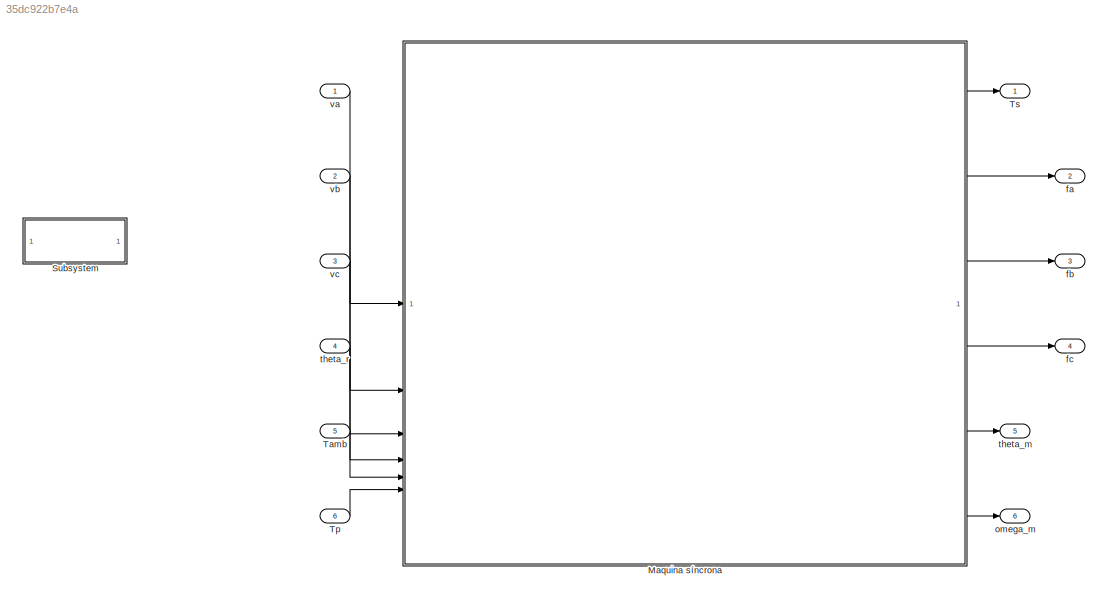
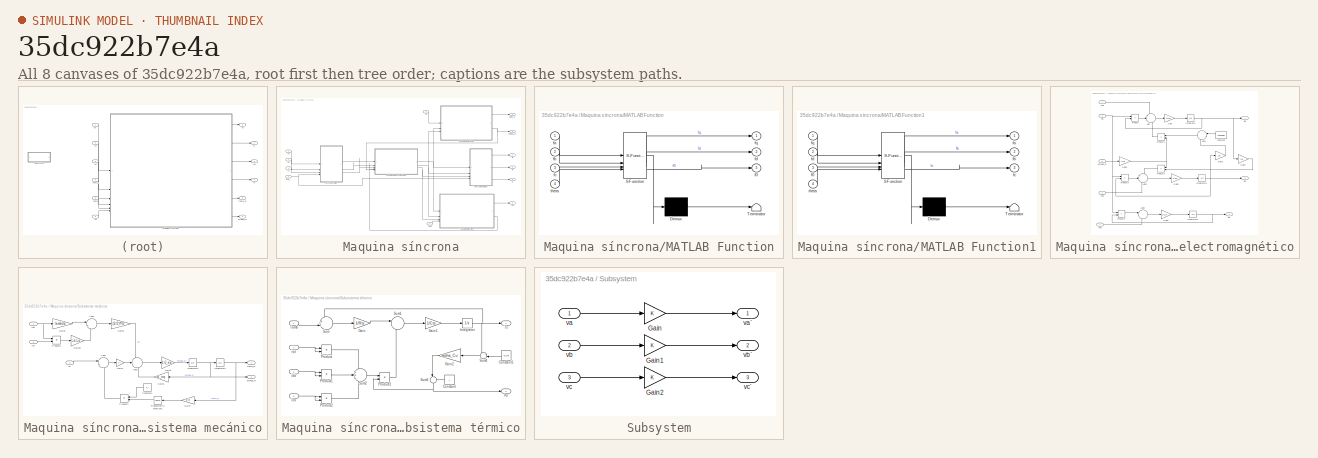
[diagram: thumbnail index - all 8 canvases of the model, root first then tree order]
MODEL slx_35dc922b7e4a
KIND model
CONFIG AbsTol = auto
CONFIG EnableMultiTasking = off
CONFIG FixedStep = auto
CONFIG MaxStep = auto
CONFIG MinStep = auto
CONFIG RelTol = 1e-3
CONFIG SampleTimeConstraint = Unconstrained
CONFIG SolverName = VariableStepAuto
CONFIG StartTime = 0.0
CONFIG StopTime = 10.0
BLOCK [SubSystem] Maquina síncrona
BLOCK [SubSystem] Maquina síncrona/MATLAB Function
  ErrorFcn = Stateflow.Translate.translate
  LibrarySourceBlock = simulink/User-Defined\nFunctions/MATLAB Function
  PermitHierarchicalResolution = ExplicitOnly
  SFBlockType = MATLAB Function
  TreatAsAtomicUnit = on
BLOCK [Demux] Maquina síncrona/MATLAB Function/ Demux 
  Outputs = 1
BLOCK [S-Function] Maquina síncrona/MATLAB Function/ SFunction 
  EnableBusSupport = off
  FunctionName = sf_sfun
  PortCounts = [4 4]
  SFcnIsStateOwnerBlock = off
  SFunctionDeploymentMode = off
  Tag = Stateflow S-Function 2
BLOCK [Terminator] Maquina síncrona/MATLAB Function/ Terminator 
BLOCK [Outport] Maquina síncrona/MATLAB Function/f0
  Port = 3
BLOCK [Inport] Maquina síncrona/MATLAB Function/fa
BLOCK [Inport] Maquina síncrona/MATLAB Function/fb
  Port = 2
BLOCK [Inport] Maquina síncrona/MATLAB Function/fc
  Port = 3
BLOCK [Outport] Maquina síncrona/MATLAB Function/fd
  Port = 2
BLOCK [Outport] Maquina síncrona/MATLAB Function/fq
BLOCK [Inport] Maquina síncrona/MATLAB Function/theta
  Port = 4
BLOCK [SubSystem] Maquina síncrona/MATLAB Function1
  ErrorFcn = Stateflow.Translate.translate
  LibrarySourceBlock = simulink/User-Defined\nFunctions/MATLAB Function
  PermitHierarchicalResolution = ExplicitOnly
  SFBlockType = MATLAB Function
  TreatAsAtomicUnit = on
BLOCK [Demux] Maquina síncrona/MATLAB Function1/ Demux 
  Outputs = 1
BLOCK [S-Function] Maquina síncrona/MATLAB Function1/ SFunction 
  EnableBusSupport = off
  FunctionName = sf_sfun
  PortCounts = [4 4]
  SFcnIsStateOwnerBlock = off
  SFunctionDeploymentMode = off
  Tag = Stateflow S-Function 1
BLOCK [Terminator] Maquina síncrona/MATLAB Function1/ Terminator 
BLOCK [Inport] Maquina síncrona/MATLAB Function1/f0
  Port = 3
BLOCK [Outport] Maquina síncrona/MATLAB Function1/fa
BLOCK [Outport] Maquina síncrona/MATLAB Function1/fb
  Port = 2
BLOCK [Outport] Maquina síncrona/MATLAB Function1/fc
  Port = 3
BLOCK [Inport] Maquina síncrona/MATLAB Function1/fd
  Port = 2
BLOCK [Inport] Maquina síncrona/MATLAB Function1/fq
BLOCK [Inport] Maquina síncrona/MATLAB Function1/theta
  Port = 4
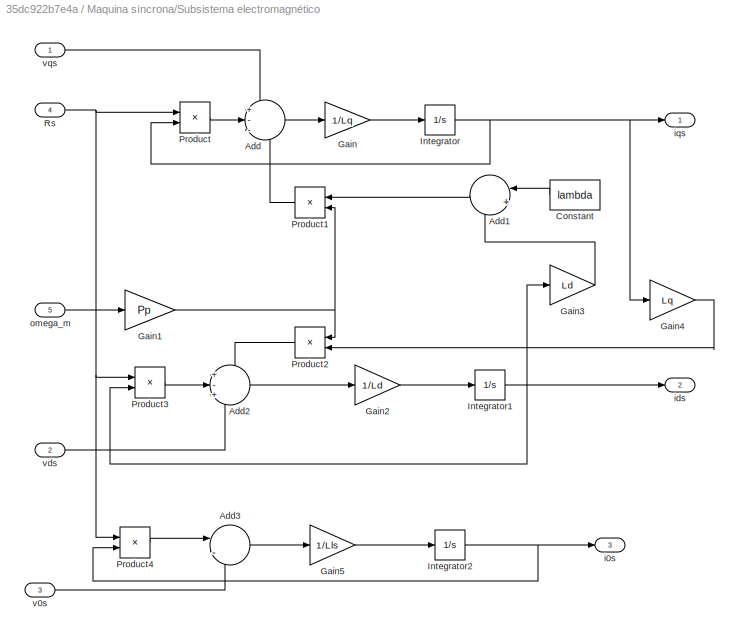
BLOCK [SubSystem] Maquina síncrona/Subsistema electromagnético
BLOCK [Sum] Maquina síncrona/Subsistema electromagnético/Add
  Inputs = +--
BLOCK [Sum] Maquina síncrona/Subsistema electromagnético/Add1
  Inputs = |++
BLOCK [Sum] Maquina síncrona/Subsistema electromagnético/Add2
  Inputs = +-+
BLOCK [Sum] Maquina síncrona/Subsistema electromagnético/Add3
  Inputs = |-+
BLOCK [Constant] Maquina síncrona/Subsistema electromagnético/Constant
  Value = lambda
BLOCK [Gain] Maquina síncrona/Subsistema electromagnético/Gain
  Gain = 1/Lq
BLOCK [Gain] Maquina síncrona/Subsistema electromagnético/Gain1
  Gain = Pp
BLOCK [Gain] Maquina síncrona/Subsistema electromagnético/Gain2
  Gain = 1/Ld
BLOCK [Gain] Maquina síncrona/Subsistema electromagnético/Gain3
  Gain = Ld
BLOCK [Gain] Maquina síncrona/Subsistema electromagnético/Gain4
  Gain = Lq
BLOCK [Gain] Maquina síncrona/Subsistema electromagnético/Gain5
  Gain = 1/Lls
BLOCK [Integrator] Maquina síncrona/Subsistema electromagnético/Integrator
BLOCK [Integrator] Maquina síncrona/Subsistema electromagnético/Integrator1
BLOCK [Integrator] Maquina síncrona/Subsistema electromagnético/Integrator2
BLOCK [Product] Maquina síncrona/Subsistema electromagnético/Product
BLOCK [Product] Maquina síncrona/Subsistema electromagnético/Product1
BLOCK [Product] Maquina síncrona/Subsistema electromagnético/Product2
BLOCK [Product] Maquina síncrona/Subsistema electromagnético/Product3
BLOCK [Product] Maquina síncrona/Subsistema electromagnético/Product4
BLOCK [Inport] Maquina síncrona/Subsistema electromagnético/Rs
  Port = 4
BLOCK [Outport] Maquina síncrona/Subsistema electromagnético/i0s
  Port = 3
BLOCK [Outport] Maquina síncrona/Subsistema electromagnético/ids
  Port = 2
BLOCK [Outport] Maquina síncrona/Subsistema electromagnético/iqs
BLOCK [Inport] Maquina síncrona/Subsistema electromagnético/omega_m
  Port = 5
BLOCK [Inport] Maquina síncrona/Subsistema electromagnético/v0s
  Port = 3
BLOCK [Inport] Maquina síncrona/Subsistema electromagnético/vds
  Port = 2
BLOCK [Inport] Maquina síncrona/Subsistema electromagnético/vqs
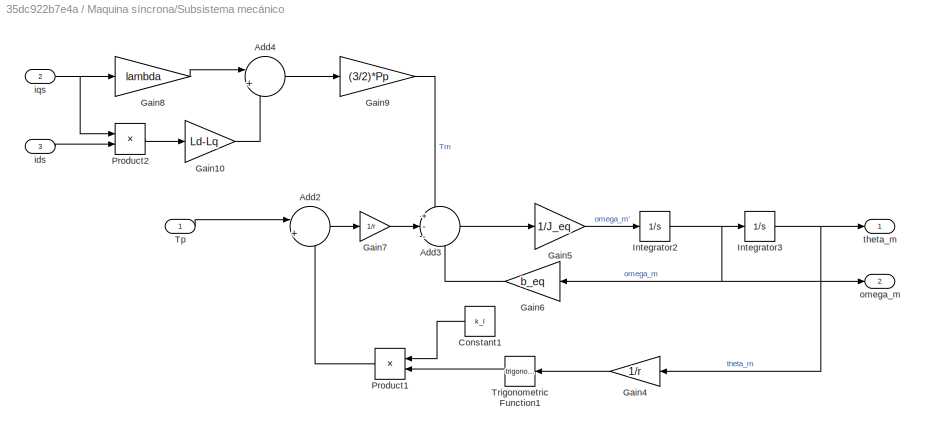
BLOCK [SubSystem] Maquina síncrona/Subsistema mecánico
BLOCK [Sum] Maquina síncrona/Subsistema mecánico/Add2
  Inputs = |++
BLOCK [Sum] Maquina síncrona/Subsistema mecánico/Add3
  Inputs = +--
BLOCK [Sum] Maquina síncrona/Subsistema mecánico/Add4
  Inputs = |++
BLOCK [Constant] Maquina síncrona/Subsistema mecánico/Constant1
  Value = k_l
BLOCK [Gain] Maquina síncrona/Subsistema mecánico/Gain10
  Gain = Ld-Lq
BLOCK [Gain] Maquina síncrona/Subsistema mecánico/Gain4
  Gain = 1/r
BLOCK [Gain] Maquina síncrona/Subsistema mecánico/Gain5
  Gain = 1/J_eq
BLOCK [Gain] Maquina síncrona/Subsistema mecánico/Gain6
  Gain = b_eq
BLOCK [Gain] Maquina síncrona/Subsistema mecánico/Gain7
  Gain = 1/r
BLOCK [Gain] Maquina síncrona/Subsistema mecánico/Gain8
  Gain = lambda
BLOCK [Gain] Maquina síncrona/Subsistema mecánico/Gain9
  Gain = (3/2)*Pp
BLOCK [Integrator] Maquina síncrona/Subsistema mecánico/Integrator2
BLOCK [Integrator] Maquina síncrona/Subsistema mecánico/Integrator3
BLOCK [Product] Maquina síncrona/Subsistema mecánico/Product1
BLOCK [Product] Maquina síncrona/Subsistema mecánico/Product2
BLOCK [Inport] Maquina síncrona/Subsistema mecánico/Tp
BLOCK [Trigonometry] Maquina síncrona/Subsistema mecánico/Trigonometric Function1
BLOCK [Inport] Maquina síncrona/Subsistema mecánico/ids
  Port = 3
BLOCK [Inport] Maquina síncrona/Subsistema mecánico/iqs
  Port = 2
BLOCK [Outport] Maquina síncrona/Subsistema mecánico/omega_m
  Port = 2
BLOCK [Outport] Maquina síncrona/Subsistema mecánico/theta_m
BLOCK [SubSystem] Maquina síncrona/Subsistema térmico
BLOCK [Constant] Maquina síncrona/Subsistema térmico/Constant
BLOCK [Constant] Maquina síncrona/Subsistema térmico/Constant1
  Value = Ts_ref
BLOCK [Gain] Maquina síncrona/Subsistema térmico/Gain
  Gain = 1/Rts
BLOCK [Gain] Maquina síncrona/Subsistema térmico/Gain1
  Gain = 1/Cts
BLOCK [Gain] Maquina síncrona/Subsistema térmico/Gain2
  Gain = alpha_Cu
BLOCK [Integrator] Maquina síncrona/Subsistema térmico/Integrator
BLOCK [Product] Maquina síncrona/Subsistema térmico/Product
BLOCK [Product] Maquina síncrona/Subsistema térmico/Product1
BLOCK [Product] Maquina síncrona/Subsistema térmico/Product2
BLOCK [Product] Maquina síncrona/Subsistema térmico/Product3
BLOCK [Outport] Maquina síncrona/Subsistema térmico/Rs
  Port = 2
BLOCK [Sum] Maquina síncrona/Subsistema térmico/Sum
  Inputs = +-|
BLOCK [Sum] Maquina síncrona/Subsistema térmico/Sum1
  Inputs = |-+
BLOCK [Sum] Maquina síncrona/Subsistema térmico/Sum2
  Inputs = +++
BLOCK [Sum] Maquina síncrona/Subsistema térmico/Sum3
  Inputs = |++
  NameLocation = right
BLOCK [Sum] Maquina síncrona/Subsistema térmico/Sum4
  Inputs = +-|
BLOCK [Inport] Maquina síncrona/Subsistema térmico/Tamb
  Port = 4
BLOCK [Outport] Maquina síncrona/Subsistema térmico/Ts
BLOCK [Inport] Maquina síncrona/Subsistema térmico/i0s
  Port = 3
BLOCK [Inport] Maquina síncrona/Subsistema térmico/ids
  Port = 2
BLOCK [Inport] Maquina síncrona/Subsistema térmico/iqs
BLOCK [Inport] Maquina síncrona/Tamb
  Port = 5
BLOCK [Inport] Maquina síncrona/Tp
  Port = 6
BLOCK [Outport] Maquina síncrona/Ts
BLOCK [Outport] Maquina síncrona/fa
  Port = 2
BLOCK [Outport] Maquina síncrona/fb
  Port = 3
BLOCK [Outport] Maquina síncrona/fc
  Port = 4
BLOCK [Outport] Maquina síncrona/omega_m
  Port = 6
BLOCK [Outport] Maquina síncrona/theta_m
  Port = 5
BLOCK [Inport] Maquina síncrona/theta_r
  Port = 4
BLOCK [Inport] Maquina síncrona/va
BLOCK [Inport] Maquina síncrona/vb
  Port = 2
BLOCK [Inport] Maquina síncrona/vc
  Port = 3
BLOCK [SubSystem] Subsystem
BLOCK [Gain] Subsystem/Gain
BLOCK [Gain] Subsystem/Gain1
BLOCK [Gain] Subsystem/Gain2
BLOCK [Inport] Subsystem/va
BLOCK [Outport] Subsystem/va´
BLOCK [Inport] Subsystem/vb
  Port = 2
BLOCK [Outport] Subsystem/vb´
  Port = 2
BLOCK [Inport] Subsystem/vc
  Port = 3
BLOCK [Outport] Subsystem/vc´
  Port = 3
BLOCK [Inport] Tamb
  Port = 5
BLOCK [Inport] Tp
  Port = 6
BLOCK [Outport] Ts
BLOCK [Outport] fa
  Port = 2
BLOCK [Outport] fb
  Port = 3
BLOCK [Outport] fc
  Port = 4
BLOCK [Outport] omega_m
  Port = 6
BLOCK [Outport] theta_m
  Port = 5
BLOCK [Inport] theta_r
  Port = 4
BLOCK [Inport] va
BLOCK [Inport] vb
  Port = 2
BLOCK [Inport] vc
  Port = 3
LINE Maquina síncrona/MATLAB Function1:1 -> Maquina síncrona/fa:1
LINE Maquina síncrona/MATLAB Function1:2 -> Maquina síncrona/fb:1
LINE Maquina síncrona/MATLAB Function1:3 -> Maquina síncrona/fc:1
LINE Maquina síncrona/MATLAB Function:1 -> Maquina síncrona/Subsistema electromagnético:1
LINE Maquina síncrona/MATLAB Function:2 -> Maquina síncrona/Subsistema electromagnético:2
LINE Maquina síncrona/MATLAB Function:3 -> Maquina síncrona/Subsistema electromagnético:3
LINE Maquina síncrona/Subsistema electromagnético/Add1:1 -> Maquina síncrona/Subsistema electromagnético/Product1:1
LINE Maquina síncrona/Subsistema electromagnético/Add2:1 -> Maquina síncrona/Subsistema electromagnético/Gain2:1
LINE Maquina síncrona/Subsistema electromagnético/Add3:1 -> Maquina síncrona/Subsistema electromagnético/Gain5:1
LINE Maquina síncrona/Subsistema electromagnético/Add:1 -> Maquina síncrona/Subsistema electromagnético/Gain:1
LINE Maquina síncrona/Subsistema electromagnético/Constant:1 -> Maquina síncrona/Subsistema electromagnético/Add1:1
NET Maquina síncrona/Subsistema electromagnético/Gain1:1 -> Maquina síncrona/Subsistema electromagnético/Product1:2, Maquina síncrona/Subsistema electromagnético/Product2:1
LINE Maquina síncrona/Subsistema electromagnético/Gain2:1 -> Maquina síncrona/Subsistema electromagnético/Integrator1:1
LINE Maquina síncrona/Subsistema electromagnético/Gain3:1 -> Maquina síncrona/Subsistema electromagnético/Add1:2
LINE Maquina síncrona/Subsistema electromagnético/Gain4:1 -> Maquina síncrona/Subsistema electromagnético/Product2:2
LINE Maquina síncrona/Subsistema electromagnético/Gain5:1 -> Maquina síncrona/Subsistema electromagnético/Integrator2:1
LINE Maquina síncrona/Subsistema electromagnético/Gain:1 -> Maquina síncrona/Subsistema electromagnético/Integrator:1
NET Maquina síncrona/Subsistema electromagnético/Integrator1:1 -> Maquina síncrona/Subsistema electromagnético/Gain3:1, Maquina síncrona/Subsistema electromagnético/Product3:2, Maquina síncrona/Subsistema electromagnético/ids:1
NET Maquina síncrona/Subsistema electromagnético/Integrator2:1 -> Maquina síncrona/Subsistema electromagnético/Product4:2, Maquina síncrona/Subsistema electromagnético/i0s:1
NET Maquina síncrona/Subsistema electromagnético/Integrator:1 -> Maquina síncrona/Subsistema electromagnético/Gain4:1, Maquina síncrona/Subsistema electromagnético/Product:2, Maquina síncrona/Subsistema electromagnético/iqs:1
LINE Maquina síncrona/Subsistema electromagnético/Product1:1 -> Maquina síncrona/Subsistema electromagnético/Add:3
LINE Maquina síncrona/Subsistema electromagnético/Product2:1 -> Maquina síncrona/Subsistema electromagnético/Add2:1
LINE Maquina síncrona/Subsistema electromagnético/Product3:1 -> Maquina síncrona/Subsistema electromagnético/Add2:2
LINE Maquina síncrona/Subsistema electromagnético/Product4:1 -> Maquina síncrona/Subsistema electromagnético/Add3:1
LINE Maquina síncrona/Subsistema electromagnético/Product:1 -> Maquina síncrona/Subsistema electromagnético/Add:2
NET Maquina síncrona/Subsistema electromagnético/Rs:1 -> Maquina síncrona/Subsistema electromagnético/Product3:1, Maquina síncrona/Subsistema electromagnético/Product4:1, Maquina síncrona/Subsistema electromagnético/Product:1
LINE Maquina síncrona/Subsistema electromagnético/omega_m:1 -> Maquina síncrona/Subsistema electromagnético/Gain1:1
LINE Maquina síncrona/Subsistema electromagnético/v0s:1 -> Maquina síncrona/Subsistema electromagnético/Add3:2
LINE Maquina síncrona/Subsistema electromagnético/vds:1 -> Maquina síncrona/Subsistema electromagnético/Add2:3
LINE Maquina síncrona/Subsistema electromagnético/vqs:1 -> Maquina síncrona/Subsistema electromagnético/Add:1
NET Maquina síncrona/Subsistema electromagnético:1 -> Maquina síncrona/MATLAB Function1:1, Maquina síncrona/Subsistema mecánico:2, Maquina síncrona/Subsistema térmico:1
NET Maquina síncrona/Subsistema electromagnético:2 -> Maquina síncrona/MATLAB Function1:2, Maquina síncrona/Subsistema mecánico:3, Maquina síncrona/Subsistema térmico:2
NET Maquina síncrona/Subsistema electromagnético:3 -> Maquina síncrona/MATLAB Function1:3, Maquina síncrona/Subsistema térmico:3
LINE Maquina síncrona/Subsistema mecánico/Add2:1 -> Maquina síncrona/Subsistema mecánico/Gain7:1
LINE Maquina síncrona/Subsistema mecánico/Add3:1 -> Maquina síncrona/Subsistema mecánico/Gain5:1
LINE Maquina síncrona/Subsistema mecánico/Add4:1 -> Maquina síncrona/Subsistema mecánico/Gain9:1
LINE Maquina síncrona/Subsistema mecánico/Constant1:1 -> Maquina síncrona/Subsistema mecánico/Product1:1
LINE Maquina síncrona/Subsistema mecánico/Gain10:1 -> Maquina síncrona/Subsistema mecánico/Add4:2
LINE Maquina síncrona/Subsistema mecánico/Gain4:1 -> Maquina síncrona/Subsistema mecánico/Trigonometric Function1:1
LINE Maquina síncrona/Subsistema mecánico/Gain5:1 -> Maquina síncrona/Subsistema mecánico/Integrator2:1
LINE Maquina síncrona/Subsistema mecánico/Gain6:1 -> Maquina síncrona/Subsistema mecánico/Add3:3
LINE Maquina síncrona/Subsistema mecánico/Gain7:1 -> Maquina síncrona/Subsistema mecánico/Add3:2
LINE Maquina síncrona/Subsistema mecánico/Gain8:1 -> Maquina síncrona/Subsistema mecánico/Add4:1
LINE Maquina síncrona/Subsistema mecánico/Gain9:1 -> Maquina síncrona/Subsistema mecánico/Add3:1
NET Maquina síncrona/Subsistema mecánico/Integrator2:1 -> Maquina síncrona/Subsistema mecánico/Gain6:1, Maquina síncrona/Subsistema mecánico/Integrator3:1, Maquina síncrona/Subsistema mecánico/omega_m:1
NET Maquina síncrona/Subsistema mecánico/Integrator3:1 -> Maquina síncrona/Subsistema mecánico/Gain4:1, Maquina síncrona/Subsistema mecánico/theta_m:1
LINE Maquina síncrona/Subsistema mecánico/Product1:1 -> Maquina síncrona/Subsistema mecánico/Add2:2
LINE Maquina síncrona/Subsistema mecánico/Product2:1 -> Maquina síncrona/Subsistema mecánico/Gain10:1
LINE Maquina síncrona/Subsistema mecánico/Tp:1 -> Maquina síncrona/Subsistema mecánico/Add2:1
LINE Maquina síncrona/Subsistema mecánico/Trigonometric Function1:1 -> Maquina síncrona/Subsistema mecánico/Product1:2
LINE Maquina síncrona/Subsistema mecánico/ids:1 -> Maquina síncrona/Subsistema mecánico/Product2:2
NET Maquina síncrona/Subsistema mecánico/iqs:1 -> Maquina síncrona/Subsistema mecánico/Gain8:1, Maquina síncrona/Subsistema mecánico/Product2:1
LINE Maquina síncrona/Subsistema mecánico:1 -> Maquina síncrona/theta_m:1
NET Maquina síncrona/Subsistema mecánico:2 -> Maquina síncrona/Subsistema electromagnético:5, Maquina síncrona/omega_m:1
LINE Maquina síncrona/Subsistema térmico/Constant1:1 -> Maquina síncrona/Subsistema térmico/Sum4:2
LINE Maquina síncrona/Subsistema térmico/Constant:1 -> Maquina síncrona/Subsistema térmico/Sum3:2
LINE Maquina síncrona/Subsistema térmico/Gain1:1 -> Maquina síncrona/Subsistema térmico/Integrator:1
LINE Maquina síncrona/Subsistema térmico/Gain2:1 -> Maquina síncrona/Subsistema térmico/Sum3:1
LINE Maquina síncrona/Subsistema térmico/Gain:1 -> Maquina síncrona/Subsistema térmico/Sum1:1
NET Maquina síncrona/Subsistema térmico/Integrator:1 -> Maquina síncrona/Subsistema térmico/Sum4:1, Maquina síncrona/Subsistema térmico/Sum:1, Maquina síncrona/Subsistema térmico/Ts:1
LINE Maquina síncrona/Subsistema térmico/Product1:1 -> Maquina síncrona/Subsistema térmico/Sum2:2
LINE Maquina síncrona/Subsistema térmico/Product2:1 -> Maquina síncrona/Subsistema térmico/Sum2:3
LINE Maquina síncrona/Subsistema térmico/Product3:1 -> Maquina síncrona/Subsistema térmico/Sum1:2
LINE Maquina síncrona/Subsistema térmico/Product:1 -> Maquina síncrona/Subsistema térmico/Sum2:1
LINE Maquina síncrona/Subsistema térmico/Sum1:1 -> Maquina síncrona/Subsistema térmico/Gain1:1
LINE Maquina síncrona/Subsistema térmico/Sum2:1 -> Maquina síncrona/Subsistema térmico/Product3:1
NET Maquina síncrona/Subsistema térmico/Sum3:1 -> Maquina síncrona/Subsistema térmico/Product3:2, Maquina síncrona/Subsistema térmico/Rs:1
LINE Maquina síncrona/Subsistema térmico/Sum4:1 -> Maquina síncrona/Subsistema térmico/Gain2:1
LINE Maquina síncrona/Subsistema térmico/Sum:1 -> Maquina síncrona/Subsistema térmico/Gain:1
LINE Maquina síncrona/Subsistema térmico/Tamb:1 -> Maquina síncrona/Subsistema térmico/Sum:2
NET Maquina síncrona/Subsistema térmico/i0s:1 -> Maquina síncrona/Subsistema térmico/Product2:1, Maquina síncrona/Subsistema térmico/Product2:2
NET Maquina síncrona/Subsistema térmico/ids:1 -> Maquina síncrona/Subsistema térmico/Product1:1, Maquina síncrona/Subsistema térmico/Product1:2
NET Maquina síncrona/Subsistema térmico/iqs:1 -> Maquina síncrona/Subsistema térmico/Product:1, Maquina síncrona/Subsistema térmico/Product:2
LINE Maquina síncrona/Subsistema térmico:1 -> Maquina síncrona/Ts:1
LINE Maquina síncrona/Subsistema térmico:2 -> Maquina síncrona/Subsistema electromagnético:4
LINE Maquina síncrona/Tamb:1 -> Maquina síncrona/Subsistema térmico:4
LINE Maquina síncrona/Tp:1 -> Maquina síncrona/Subsistema mecánico:1
NET Maquina síncrona/theta_r:1 -> Maquina síncrona/MATLAB Function1:4, Maquina síncrona/MATLAB Function:4
LINE Maquina síncrona/va:1 -> Maquina síncrona/MATLAB Function:1
LINE Maquina síncrona/vb:1 -> Maquina síncrona/MATLAB Function:2
LINE Maquina síncrona/vc:1 -> Maquina síncrona/MATLAB Function:3
LINE Maquina síncrona:1 -> Ts:1
LINE Maquina síncrona:2 -> fa:1
LINE Maquina síncrona:3 -> fb:1
LINE Maquina síncrona:4 -> fc:1
LINE Maquina síncrona:5 -> theta_m:1
LINE Maquina síncrona:6 -> omega_m:1
LINE Subsystem/Gain1:1 -> Subsystem/vb´:1
LINE Subsystem/Gain2:1 -> Subsystem/vc´:1
LINE Subsystem/Gain:1 -> Subsystem/va´:1
LINE Subsystem/va:1 -> Subsystem/Gain:1
LINE Subsystem/vb:1 -> Subsystem/Gain1:1
LINE Subsystem/vc:1 -> Subsystem/Gain2:1
LINE Tamb:1 -> Maquina síncrona:5
LINE Tp:1 -> Maquina síncrona:6
LINE theta_r:1 -> Maquina síncrona:4
LINE va:1 -> Maquina síncrona:1
LINE vb:1 -> Maquina síncrona:2
LINE vc:1 -> Maquina síncrona:3
note: NET lines group one-source signal fan-out (src -> all destinations, sorted); 1:1 wires keep LINE
CHART Maquina síncrona/MATLAB Function1 states=1 transitions=1
  STATE_LABEL 'eML_blk_kernel()'
  STATE_LABEL 'SCRIPT:\nfunction [fa,fb,fc] = TI_Park(fq,fd,f0,theta)\n\nf = (2/3)*[     cos(theta)              sin(theta)         1;\n           cos(theta - (2*pi)/3)   sin(theta - (2*pi)/3)   1;\n           cos(theta + (2*pi)/3)   sin(theta + (2*pi)/3)   1];\n\n[fa;fb;fc] = f*[fq;fd;f0];\n\n'
CHART Maquina síncrona/MATLAB Function states=1 transitions=1
  STATE_LABEL 'eML_blk_kernel()'
  STATE_LABEL 'SCRIPT:\nfunction [fq,fd,f0] = TD_Park(fa,fb,fc,theta)\n\nf = (2/3)*[cos(theta)  cos(theta - (2*pi)/3)   cos(theta + (2*pi)/3);\n           sin(theta)  sin(theta - (2*pi)/3)   sin(theta + (2*pi)/3);\n              1/2              1/2                     1/2         ];\n\n[fq;fd;f0] = f*[fa;fb;fc];\n\n'
CHART  states=0 transitions=0
CHART  states=0 transitions=0
